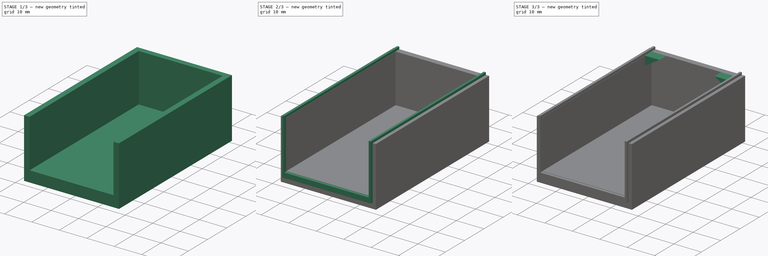
[diagram: build sequence overview — one tinted view per stage of 3, left to right]
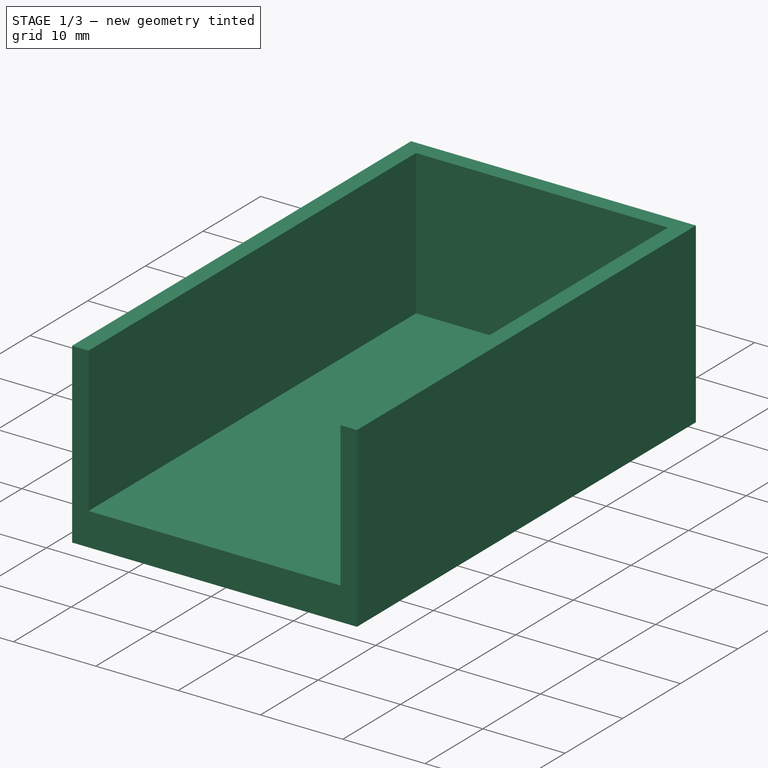
[diagram: stage 1 of 3 — iso view after this stage's code; geometry added in this stage tinted green]
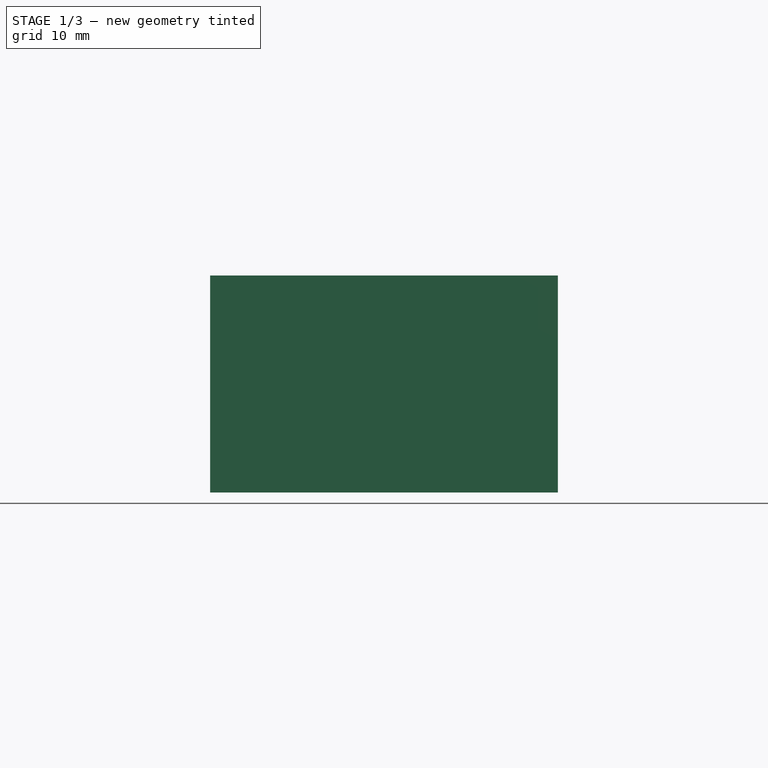
[diagram: stage 1 of 3 — front view after this stage's code; geometry added in this stage tinted green]
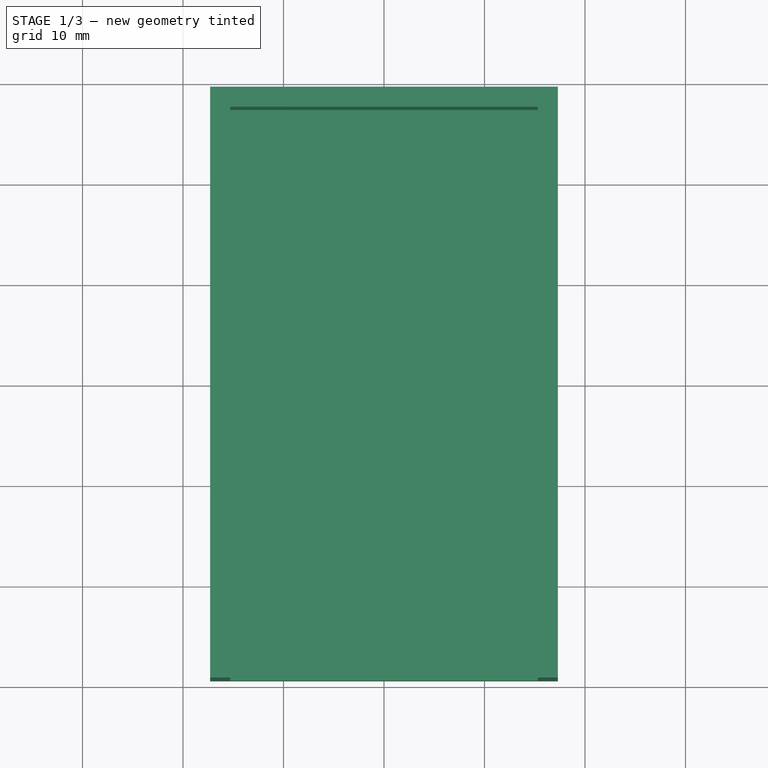
[diagram: stage 1 of 3 — top view after this stage's code; geometry added in this stage tinted green]
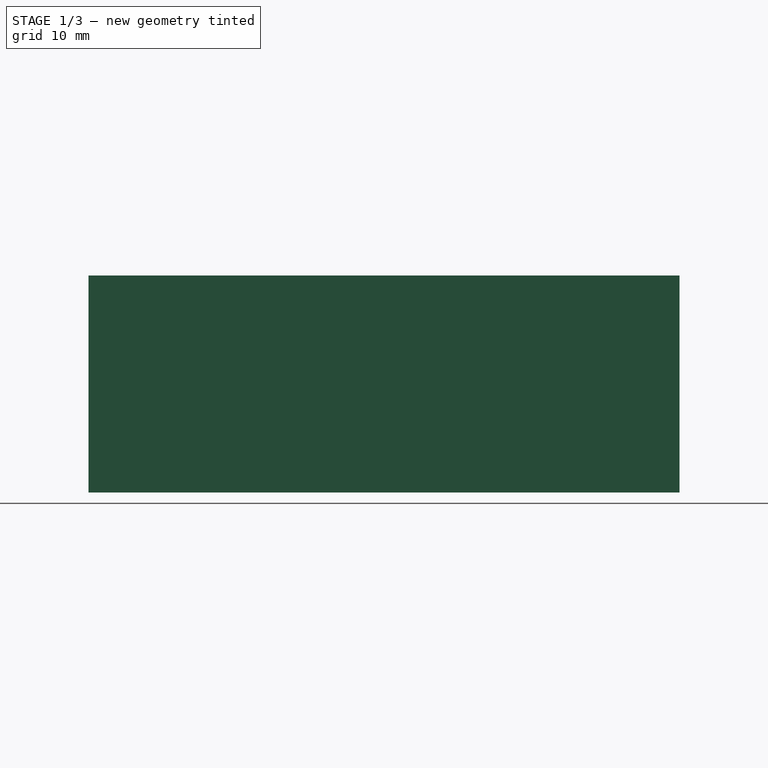
[diagram: stage 1 of 3 — right view after this stage's code; geometry added in this stage tinted green]
FCSTD DOCUMENT  (FreeCAD 0.17R13519 (Git))
Label: battery_cover
License: All rights reserved
LicenseURL: http://en.wikipedia.org/wiki/All_rights_reserved
objects: Sketcher::SketchObject×5, PartDesign::Pad×4, PartDesign::Pocket×1, PartDesign::Body×1
note: 16 computed .brp shape members not serialized (recipe doc carries the construction recipe); baked Part::Feature solids carry a one-line shape summary decoded from their .brp

FEATURE [Sketcher::SketchObject] Sketch  label="base_sketch"
  AttachmentOffset = pos=(0,0,-2) rot=(0,0,1;0rad)
  MapMode = 5
  Placement = pos=(0,0,-2) rot=(0,0,1;0rad)
  Support = -> [XY_Plane]
  sketch-geometry (4):
    g0: LineSegment StartX=-17.3 StartY=29.4 StartZ=0 EndX=17.3 EndY=29.4 EndZ=0
    g1: LineSegment StartX=17.3 StartY=29.4 StartZ=0 EndX=17.3 EndY=-29.4 EndZ=0
    g2: LineSegment StartX=17.3 StartY=-29.4 StartZ=0 EndX=-17.3 EndY=-29.4 EndZ=0
    g3: LineSegment StartX=-17.3 StartY=-29.4 StartZ=0 EndX=-17.3 EndY=29.4 EndZ=0
  constraints (12):
    c: Coincident(g0,g1)
    c: Coincident(g1,g2)
    c: Coincident(g2,g3)
    c: Coincident(g3,g0)
    c: Horizontal(g0)
    c: Horizontal(g2)
    c: Vertical(g1)
    c: Vertical(g3)
    c: DistanceY(g3,g3) = 58.8
    c: DistanceX(g0,g0) = 34.6
    c: Symmetric(g0,g0,g-2)
    c: Symmetric(g2,g0,g-1)
FEATURE [PartDesign::Pad] Pad  label="base_pad"
  Length = 4
  Length2 = 100
  Profile = -> Sketch
  Type = 0
FEATURE [Sketcher::SketchObject] Sketch001  label="walls_sketch"
  AttachmentOffset = pos=(0,0,2) rot=(0,0,1;0rad)
  MapMode = 5
  Placement = pos=(0,0,2) rot=(0,0,1;0rad)
  Support = -> [XY_Plane]
  sketch-geometry (8):
    g0: LineSegment StartX=-15.3 StartY=-29.4 StartZ=0 EndX=-15.3 EndY=27.4 EndZ=0
    g1: LineSegment StartX=-15.3 StartY=27.4 StartZ=0 EndX=15.3 EndY=27.4 EndZ=0
    g2: LineSegment StartX=15.3 StartY=27.4 StartZ=0 EndX=15.3 EndY=-29.4 EndZ=0
    g3: LineSegment StartX=17.3 StartY=-29.4 StartZ=0 EndX=17.3 EndY=29.4 EndZ=0
    g4: LineSegment StartX=-17.3 StartY=29.4 StartZ=0 EndX=-17.3 EndY=-29.4 EndZ=0
    g5: LineSegment StartX=-17.3 StartY=-29.4 StartZ=0 EndX=-15.3 EndY=-29.4 EndZ=0
    g6: LineSegment StartX=-17.3 StartY=29.4 StartZ=0 EndX=17.3 EndY=29.4 EndZ=0
    g7: LineSegment StartX=17.3 StartY=-29.4 StartZ=0 EndX=15.3 EndY=-29.4 EndZ=0
  constraints (23):
    c: Vertical(g0)
    c: Coincident(g1,g0)
    c: Coincident(g2,g1)
    c: Vertical(g2)
    c: Vertical(g3)
    c: Vertical(g4)
    c: Coincident(g5,g4)
    c: Coincident(g5,g0)
    c: Horizontal(g5)
    c: Symmetric(g0,g1,g-2)
    c: Coincident(g6,g4)
    c: Coincident(g6,g3)
    c: Horizontal(g6)
    c: Coincident(g7,g3)
    c: Coincident(g7,g2)
    c: Equal(g5,g7)
    c: DistanceX(g7,g7) = 2
    c: DistanceY(g0,g4) = 2
    c: Equal(g0,g2)
    c: Horizontal(g7)
    c: DistanceX(g6,g6) = 34.6
    c: DistanceY(g3,g3) = 58.8
    c: Symmetric(g4,g4,g-1)
FEATURE [PartDesign::Pad] Pad001  label="walls_pad"
  BaseFeature = -> Pad
  Length = 17.6
  Length2 = 100
  Profile = -> Sketch001
  Type = 0
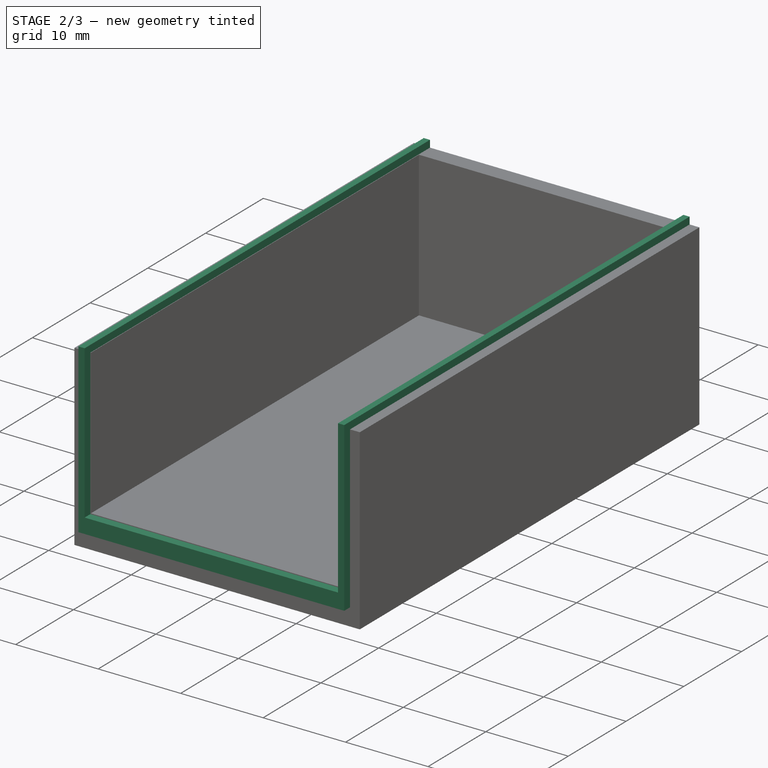
[diagram: stage 2 of 3 — iso view after this stage's code; geometry added in this stage tinted green]
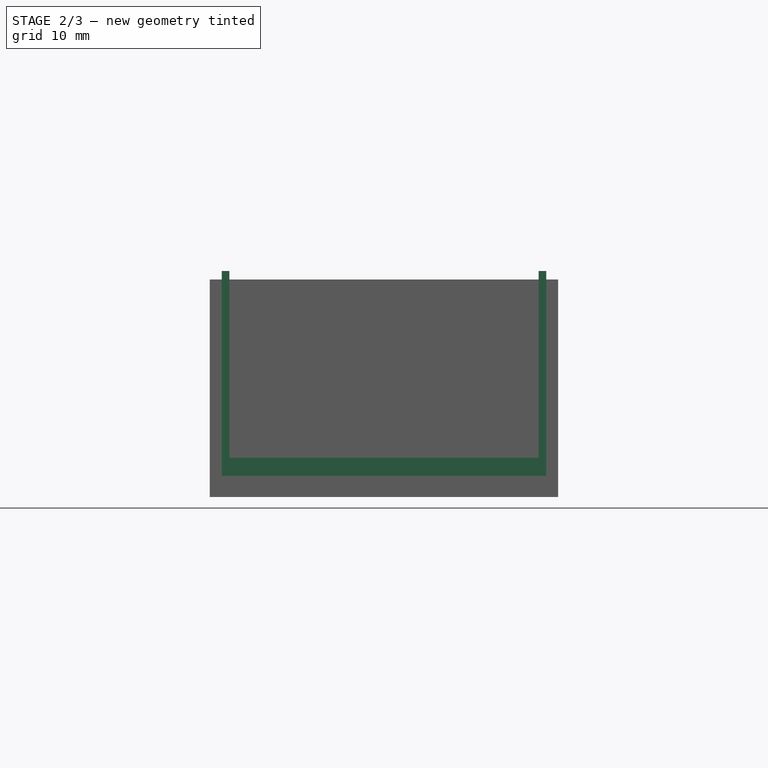
[diagram: stage 2 of 3 — front view after this stage's code; geometry added in this stage tinted green]
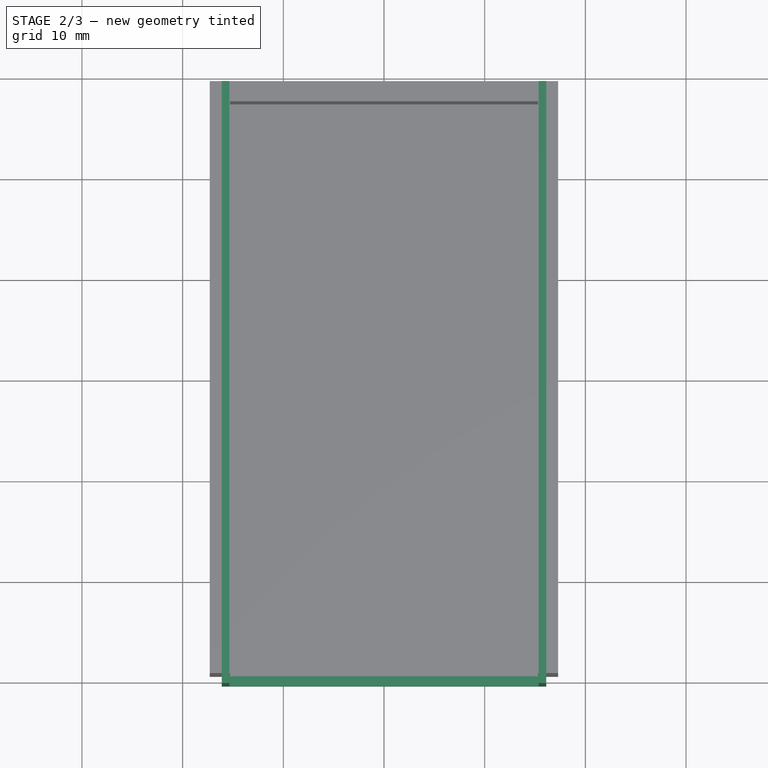
[diagram: stage 2 of 3 — top view after this stage's code; geometry added in this stage tinted green]
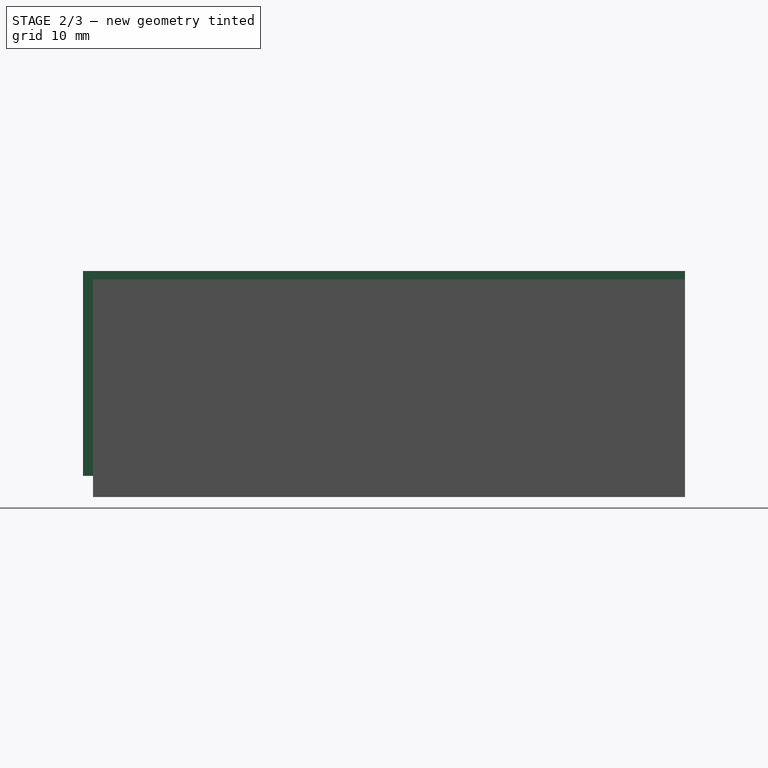
[diagram: stage 2 of 3 — right view after this stage's code; geometry added in this stage tinted green]
FEATURE [Sketcher::SketchObject] Sketch003  label="track_sketch"
  MapMode = 5
  Placement = pos=(0,-30.4,0) rot=(1,0,0;1.5708rad)
  sketch-geometry (8):
    g0: LineSegment StartX=-15.3625 StartY=20.45 StartZ=0 EndX=-16.1125 EndY=20.45 EndZ=0
    g1: LineSegment StartX=-16.1125 StartY=20.45 StartZ=0 EndX=-16.1125 EndY=0.1 EndZ=0
    g2: LineSegment StartX=-16.1125 StartY=0.1 StartZ=0 EndX=16.1125 EndY=0.1 EndZ=0
    g3: LineSegment StartX=16.1125 StartY=0.1 StartZ=0 EndX=16.1125 EndY=20.45 EndZ=0
    g4: LineSegment StartX=16.1125 StartY=20.45 StartZ=0 EndX=15.3625 EndY=20.45 EndZ=0
    g5: LineSegment StartX=15.3625 StartY=20.45 StartZ=0 EndX=15.3625 EndY=1.9 EndZ=0
    g6: LineSegment StartX=15.3625 StartY=1.9 StartZ=0 EndX=-15.3625 EndY=1.9 EndZ=0
    g7: LineSegment StartX=-15.3625 StartY=1.9 StartZ=0 EndX=-15.3625 EndY=20.45 EndZ=0
  constraints (24):
    c: Horizontal(g0)
    c: Coincident(g1,g0)
    c: Vertical(g1)
    c: Coincident(g2,g1)
    c: Horizontal(g2)
    c: Vertical(g3)
    c: Horizontal(g4)
    c: Coincident(g5,g4)
    c: Vertical(g5)
    c: Coincident(g6,g5)
    c: Horizontal(g6)
    c: Coincident(g7,g6)
    c: Coincident(g7,g0)
    c: Vertical(g7)
    c: DistanceX(g0,g4) = 30.725
    c: DistanceX(g4,g4) = 0.75
    c: DistanceY(g-1,g5) = 1.9
    c: DistanceY(g2,g5) = 1.8
    c: Symmetric(g5,g6,g-2)
    c: Equal(g0,g4)
    c: DistanceY(g6,g0) = 18.55
    c: Coincident(g3,g4)
    c: Coincident(g2,g3)
    c: Equal(g1,g3)
FEATURE [PartDesign::Pad] Pad003  label="track_pad"
  BaseFeature = -> Pad001
  Length = 59.8
  Length2 = 100
  Profile = -> Sketch003
  Reversed = true
  Type = 0
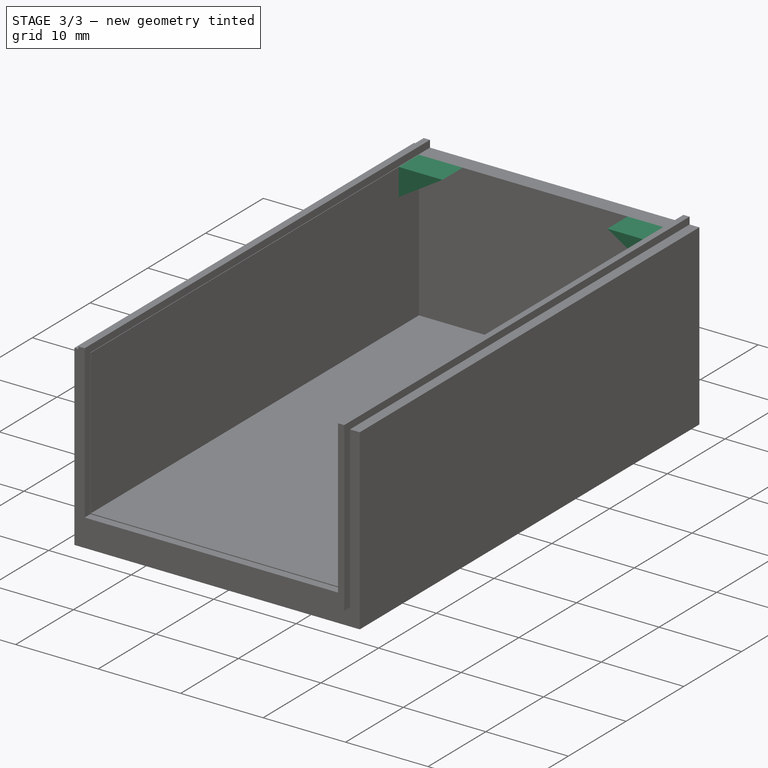
[diagram: stage 3 of 3 — iso view after this stage's code; geometry added in this stage tinted green]
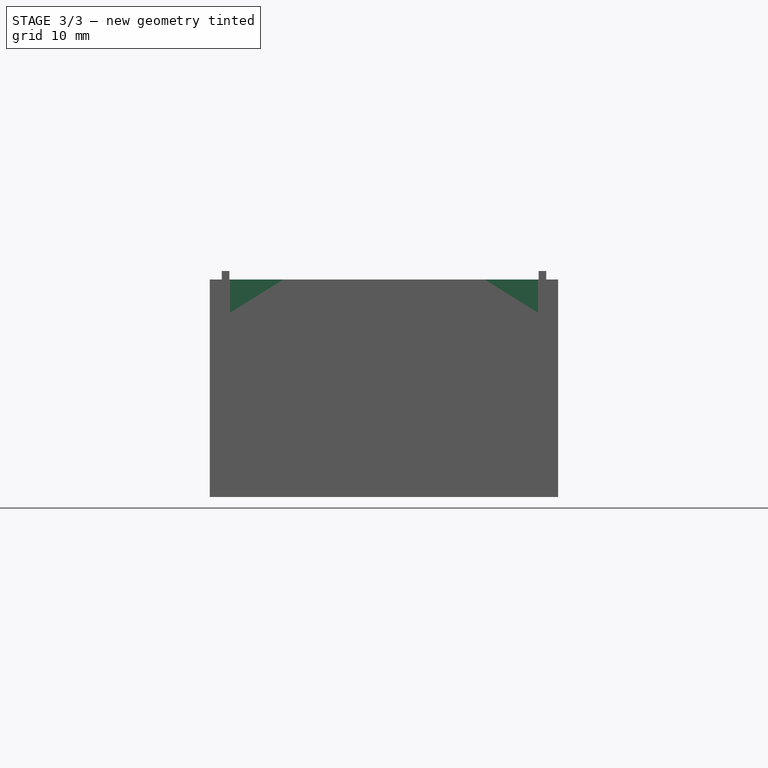
[diagram: stage 3 of 3 — front view after this stage's code; geometry added in this stage tinted green]
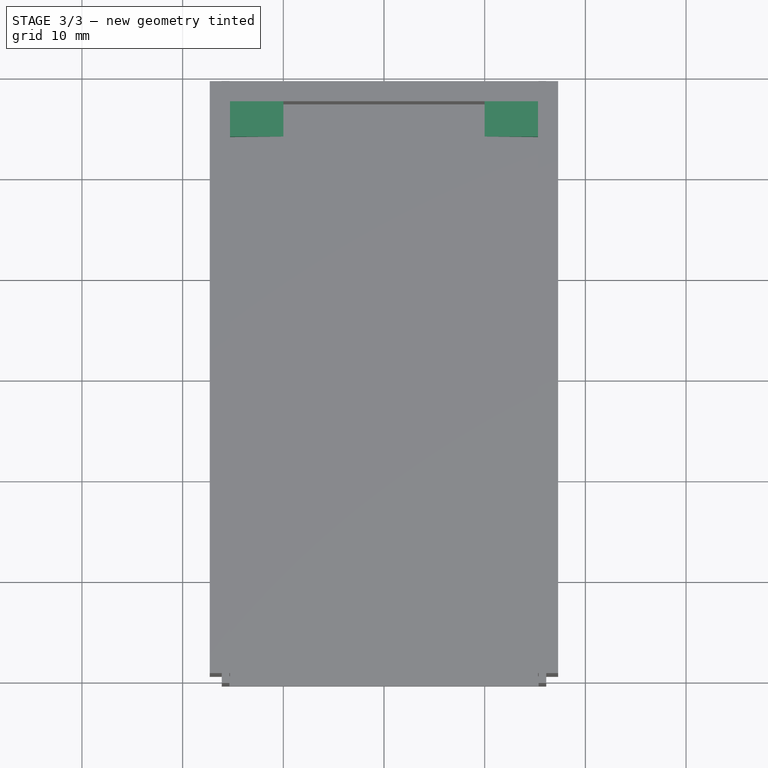
[diagram: stage 3 of 3 — top view after this stage's code; geometry added in this stage tinted green]
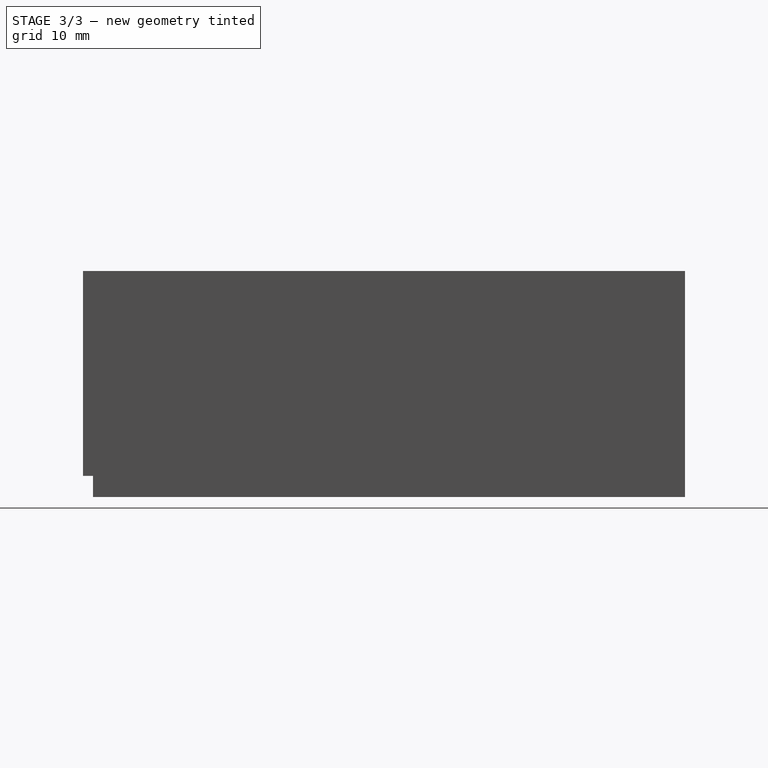
[diagram: stage 3 of 3 — right view after this stage's code; geometry added in this stage tinted green]
FEATURE [Sketcher::SketchObject] Sketch004  label="clip_sketch"
  AttachmentOffset = pos=(0,0,-27.4) rot=(0,0,1;0rad)
  MapMode = 5
  Placement = pos=(0,27.4,3e-12) rot=(1,0,0;1.5708rad)
  Support = -> [XZ_Plane]
  sketch-geometry (6):
    g0: LineSegment StartX=-15.3 StartY=19.6 StartZ=0 EndX=-15.3 EndY=16.3 EndZ=0
    g1: LineSegment StartX=-15.3 StartY=19.6 StartZ=0 EndX=-10 EndY=19.6 EndZ=0
    g2: LineSegment StartX=-10 StartY=19.6 StartZ=0 EndX=-15.3 EndY=16.3 EndZ=0
    g3: LineSegment StartX=15.3 StartY=19.6 StartZ=0 EndX=15.3 EndY=16.3 EndZ=0
    g4: LineSegment StartX=15.3 StartY=19.6 StartZ=0 EndX=10 EndY=19.6 EndZ=0
    g5: LineSegment StartX=10 StartY=19.6 StartZ=0 EndX=15.3 EndY=16.3 EndZ=0
  constraints (17):
    c: Vertical(g0)
    c: Coincident(g1,g0)
    c: Horizontal(g1)
    c: Coincident(g2,g1)
    c: Coincident(g2,g0)
    c: Vertical(g3)
    c: Coincident(g4,g3)
    c: Horizontal(g4)
    c: Coincident(g5,g4)
    c: Coincident(g5,g3)
    c: Equal(g1,g4)
    c: Equal(g3,g0)
    c: Symmetric(g1,g4,g-2)
    c: DistanceX(g1,g1) = 5.3
    c: DistanceY(g3,g3) = 3.3
    c: DistanceY(g-1,g0) = 19.6
    c: DistanceX(g0,g3) = 30.6
FEATURE [PartDesign::Pad] Pad004  label="clip_pad"
  BaseFeature = -> Pad003
  Length = 3.5
  Length2 = 100
  Profile = -> Sketch004
  Type = 0
FEATURE [Sketcher::SketchObject] Sketch005  label="thumb_hole_sketch"
  MapMode = 5
  Placement = pos=(0,0,0) rot=(0.57735,0.57735,0.57735;2.0944rad)
  Support = -> [YZ_Plane]
  sketch-geometry (3):
    g0: LineSegment StartX=20 StartY=0 StartZ=0 EndX=20 EndY=-2 EndZ=0
    g1: LineSegment StartX=20 StartY=-2 StartZ=0 EndX=10 EndY=-2 EndZ=0
    g2: LineSegment StartX=10 StartY=-2 StartZ=0 EndX=20 EndY=0 EndZ=0
  constraints (9):
    c: PointOnObject(g0,g-1)
    c: Vertical(g0)
    c: Coincident(g1,g0)
    c: Horizontal(g1)
    c: Coincident(g2,g1)
    c: Coincident(g2,g0)
    c: DistanceY(g0,g0) = 2
    c: DistanceX(g1,g1) = 10
    c: DistanceX(g-1,g1) = 10
FEATURE [PartDesign::Pocket] Pocket  label="thumb_hole_pocket"
  BaseFeature = -> Pad004
  Length = 20
  Length2 = 100
  Midplane = true
  Profile = -> Sketch005
  Type = 0
FEATURE [PartDesign::Body] Body
  Group = -> [Sketch,Pad,Sketch001,Pad001,Sketch003,Pad003,Sketch004,Pad004,Sketch005,Pocket]
  Origin = -> Origin
  Tip = -> Pocket
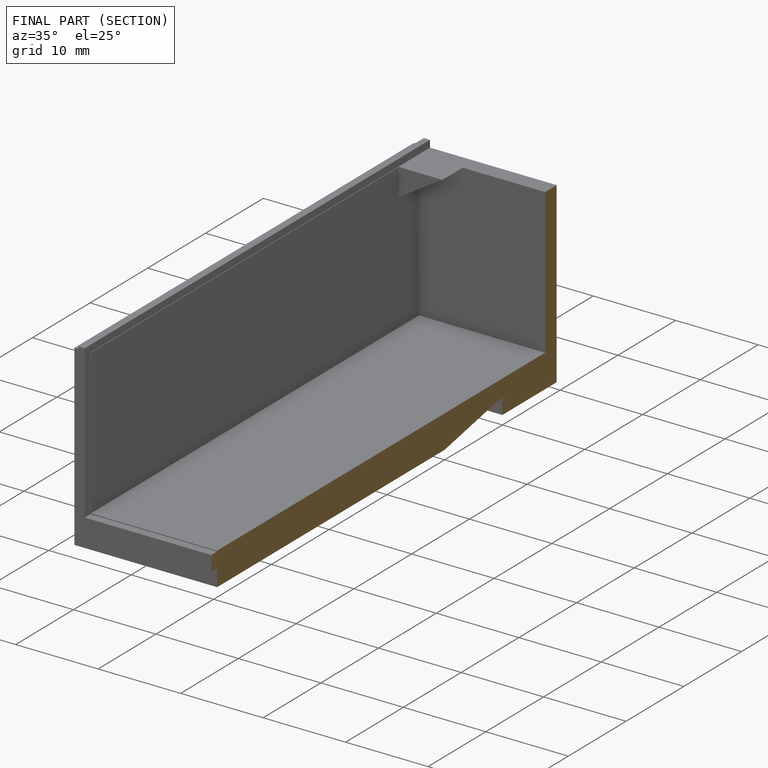
[diagram: finished part — half-section view (interior)]
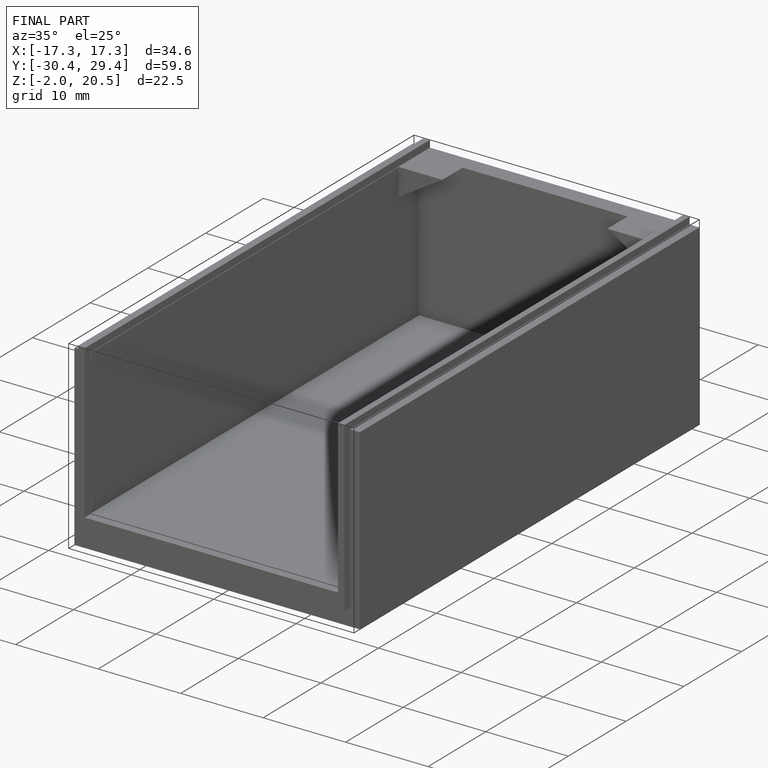
[diagram: finished part — iso view with bounding-box wireframe]
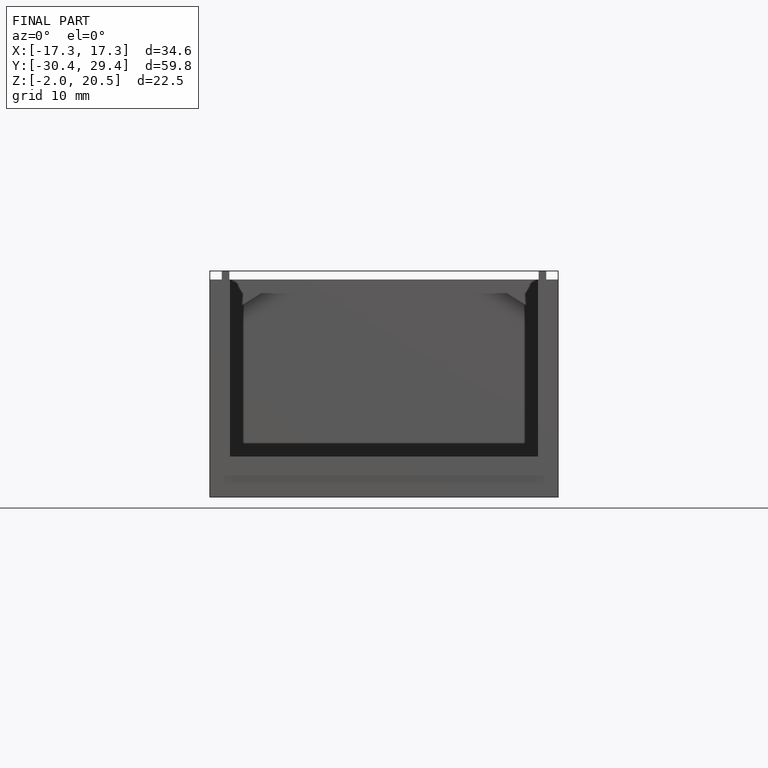
[diagram: finished part — front view with bounding-box wireframe]
